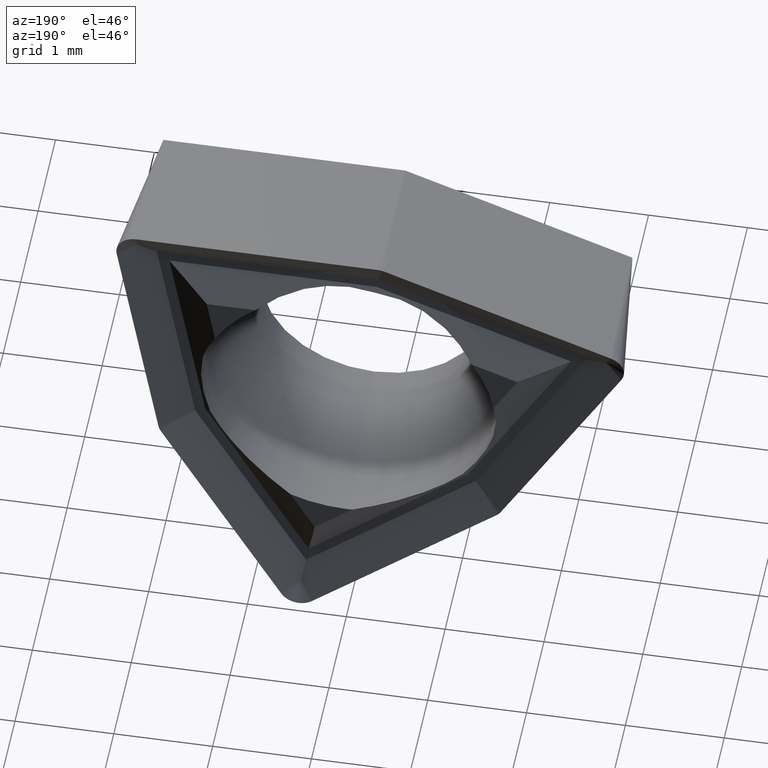
[diagram: clean part render]
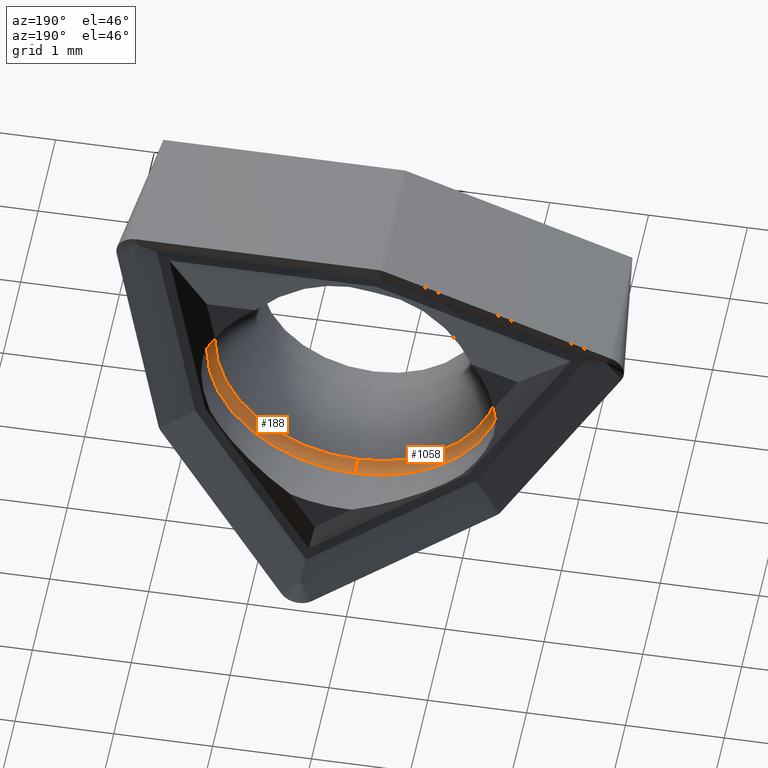
[diagram: same view with one multi-face feature highlighted, each face labeled with its STEP entity id]
A machine part, auxiliary view. The highlighted faces form ONE feature: a constant-radius fillet chain: 2 tangent blend faces with common blend radius 0.2 mm. The faces share edges in the B-rep.
Their STEP definitions:
[1] entity #1058 (Torus):
#22 = ORIENTED_EDGE ( 'NONE', *, *, #261, .F. ) ;
#32 = VERTEX_POINT ( 'NONE', #481 ) ;
#33 = AXIS2_PLACEMENT_3D ( 'NONE', #387, #780, #372 ) ;
#108 = DIRECTION ( 'NONE',  ( -0.000000000000000000, 1.000000000000000000, -0.000000000000000000 ) ) ;
#111 = EDGE_CURVE ( 'NONE', #1238, #32, #607, .T. ) ;
#118 = ORIENTED_EDGE ( 'NONE', *, *, #982, .F. ) ;
#148 = CARTESIAN_POINT ( 'NONE',  ( 1.800951175216695646E-16, -0.6416658185740271580, -1.441176470588235059 ) ) ;
#192 = DIRECTION ( 'NONE',  ( 0.000000000000000000, 0.000000000000000000, 1.000000000000000000 ) ) ;
#202 = EDGE_LOOP ( 'NONE', ( #118, #1036, #1231, #22 ) ) ;
#261 = EDGE_CURVE ( 'NONE', #603, #32, #862, .T. ) ;
#319 = DIRECTION ( 'NONE',  ( -1.000000000000000000, 0.000000000000000000, 0.000000000000000000 ) ) ;
#338 = VERTEX_POINT ( 'NONE', #148 ) ;
#347 = DIRECTION ( 'NONE',  ( 1.224646799147353207E-16, 0.000000000000000000, -1.000000000000000000 ) ) ;
#372 = DIRECTION ( 'NONE',  ( 0.000000000000000000, 0.000000000000000000, 1.000000000000000000 ) ) ;
#387 = CARTESIAN_POINT ( 'NONE',  ( 0.000000000000000000, -0.5000000000000001110, 0.000000000000000000 ) ) ;
#481 = CARTESIAN_POINT ( 'NONE',  ( 0.000000000000000000, -0.5000000000000000000, 1.499999999999999556 ) ) ;
#500 = AXIS2_PLACEMENT_3D ( 'NONE', #1173, #1252, #347 ) ;
#537 = CARTESIAN_POINT ( 'NONE',  ( 0.000000000000000000, -0.5000000000000001110, 1.299999999999999822 ) ) ;
#548 = AXIS2_PLACEMENT_3D ( 'NONE', #1291, #108, #192 ) ;
#580 = CIRCLE ( 'NONE', #938, 1.441176470588235059 ) ;
#598 = CARTESIAN_POINT ( 'NONE',  ( 1.836970198721029441E-16, -0.5000000000000000000, -1.499999999999999556 ) ) ;
#603 = VERTEX_POINT ( 'NONE', #685 ) ;
#607 = CIRCLE ( 'NONE', #548, 1.499999999999999556 ) ;
#684 = CIRCLE ( 'NONE', #500, 0.2000000000000000944 ) ;
#685 = CARTESIAN_POINT ( 'NONE',  ( 0.000000000000000000, -0.6416658185740271580, 1.441176470588235059 ) ) ;
#712 = DIRECTION ( 'NONE',  ( -0.000000000000000000, 1.000000000000000000, -0.000000000000000000 ) ) ;
#780 = DIRECTION ( 'NONE',  ( -0.000000000000000000, 1.000000000000000000, -0.000000000000000000 ) ) ;
#817 = CARTESIAN_POINT ( 'NONE',  ( 0.000000000000000000, -0.6416658185740271580, 0.000000000000000000 ) ) ;
#841 = AXIS2_PLACEMENT_3D ( 'NONE', #537, #319, #1236 ) ;
#862 = CIRCLE ( 'NONE', #841, 0.2000000000000000944 ) ;
#874 = EDGE_CURVE ( 'NONE', #338, #1238, #684, .T. ) ;
#888 = FACE_OUTER_BOUND ( 'NONE', #202, .T. ) ;
#938 = AXIS2_PLACEMENT_3D ( 'NONE', #817, #712, #1124 ) ;
#982 = EDGE_CURVE ( 'NONE', #338, #603, #580, .T. ) ;
#1036 = ORIENTED_EDGE ( 'NONE', *, *, #874, .T. ) ;
#1058 = ADVANCED_FACE ( 'NONE', ( #888 ), #1288, .F. ) ;
#1124 = DIRECTION ( 'NONE',  ( 0.000000000000000000, 0.000000000000000000, 1.000000000000000000 ) ) ;
#1173 = CARTESIAN_POINT ( 'NONE',  ( 1.592040838891558849E-16, -0.5000000000000001110, -1.299999999999999822 ) ) ;
#1231 = ORIENTED_EDGE ( 'NONE', *, *, #111, .T. ) ;
#1236 = DIRECTION ( 'NONE',  ( 0.000000000000000000, 0.000000000000000000, 1.000000000000000000 ) ) ;
#1238 = VERTEX_POINT ( 'NONE', #598 ) ;
#1252 = DIRECTION ( 'NONE',  ( 1.000000000000000000, 0.000000000000000000, 1.224646799147353207E-16 ) ) ;
#1288 = TOROIDAL_SURFACE ( 'NONE', #33, 1.299999999999999822, 0.2000000000000000666 ) ;
#1291 = CARTESIAN_POINT ( 'NONE',  ( 0.000000000000000000, -0.5000000000000000000, 0.000000000000000000 ) ) ;
[2] entity #188 (Torus):
#32 = VERTEX_POINT ( 'NONE', #481 ) ;
#38 = CIRCLE ( 'NONE', #395, 1.441176470588235059 ) ;
#115 = CARTESIAN_POINT ( 'NONE',  ( 0.000000000000000000, -0.6416658185740271580, 0.000000000000000000 ) ) ;
#136 = EDGE_CURVE ( 'NONE', #603, #338, #38, .T. ) ;
#148 = CARTESIAN_POINT ( 'NONE',  ( 1.800951175216695646E-16, -0.6416658185740271580, -1.441176470588235059 ) ) ;
#183 = DIRECTION ( 'NONE',  ( -0.000000000000000000, 1.000000000000000000, -0.000000000000000000 ) ) ;
#188 = ADVANCED_FACE ( 'NONE', ( #312 ), #1277, .F. ) ;
#197 = DIRECTION ( 'NONE',  ( 0.000000000000000000, 0.000000000000000000, 1.000000000000000000 ) ) ;
#236 = EDGE_LOOP ( 'NONE', ( #659, #815, #727, #854 ) ) ;
#261 = EDGE_CURVE ( 'NONE', #603, #32, #862, .T. ) ;
#312 = FACE_OUTER_BOUND ( 'NONE', #236, .T. ) ;
#319 = DIRECTION ( 'NONE',  ( -1.000000000000000000, 0.000000000000000000, 0.000000000000000000 ) ) ;
#338 = VERTEX_POINT ( 'NONE', #148 ) ;
#347 = DIRECTION ( 'NONE',  ( 1.224646799147353207E-16, 0.000000000000000000, -1.000000000000000000 ) ) ;
#395 = AXIS2_PLACEMENT_3D ( 'NONE', #115, #709, #989 ) ;
#412 = AXIS2_PLACEMENT_3D ( 'NONE', #1101, #183, #197 ) ;
#481 = CARTESIAN_POINT ( 'NONE',  ( 0.000000000000000000, -0.5000000000000000000, 1.499999999999999556 ) ) ;
#500 = AXIS2_PLACEMENT_3D ( 'NONE', #1173, #1252, #347 ) ;
#537 = CARTESIAN_POINT ( 'NONE',  ( 0.000000000000000000, -0.5000000000000001110, 1.299999999999999822 ) ) ;
#598 = CARTESIAN_POINT ( 'NONE',  ( 1.836970198721029441E-16, -0.5000000000000000000, -1.499999999999999556 ) ) ;
#603 = VERTEX_POINT ( 'NONE', #685 ) ;
#659 = ORIENTED_EDGE ( 'NONE', *, *, #874, .F. ) ;
#684 = CIRCLE ( 'NONE', #500, 0.2000000000000000944 ) ;
#685 = CARTESIAN_POINT ( 'NONE',  ( 0.000000000000000000, -0.6416658185740271580, 1.441176470588235059 ) ) ;
#709 = DIRECTION ( 'NONE',  ( -0.000000000000000000, 1.000000000000000000, -0.000000000000000000 ) ) ;
#717 = AXIS2_PLACEMENT_3D ( 'NONE', #896, #799, #1115 ) ;
#727 = ORIENTED_EDGE ( 'NONE', *, *, #261, .T. ) ;
#799 = DIRECTION ( 'NONE',  ( -0.000000000000000000, 1.000000000000000000, -0.000000000000000000 ) ) ;
#815 = ORIENTED_EDGE ( 'NONE', *, *, #136, .F. ) ;
#841 = AXIS2_PLACEMENT_3D ( 'NONE', #537, #319, #1236 ) ;
#854 = ORIENTED_EDGE ( 'NONE', *, *, #1025, .T. ) ;
#862 = CIRCLE ( 'NONE', #841, 0.2000000000000000944 ) ;
#874 = EDGE_CURVE ( 'NONE', #338, #1238, #684, .T. ) ;
#896 = CARTESIAN_POINT ( 'NONE',  ( 0.000000000000000000, -0.5000000000000001110, 0.000000000000000000 ) ) ;
#989 = DIRECTION ( 'NONE',  ( 0.000000000000000000, 0.000000000000000000, 1.000000000000000000 ) ) ;
#1025 = EDGE_CURVE ( 'NONE', #32, #1238, #1269, .T. ) ;
#1101 = CARTESIAN_POINT ( 'NONE',  ( 0.000000000000000000, -0.5000000000000000000, 0.000000000000000000 ) ) ;
#1115 = DIRECTION ( 'NONE',  ( 0.000000000000000000, 0.000000000000000000, 1.000000000000000000 ) ) ;
#1173 = CARTESIAN_POINT ( 'NONE',  ( 1.592040838891558849E-16, -0.5000000000000001110, -1.299999999999999822 ) ) ;
#1236 = DIRECTION ( 'NONE',  ( 0.000000000000000000, 0.000000000000000000, 1.000000000000000000 ) ) ;
#1238 = VERTEX_POINT ( 'NONE', #598 ) ;
#1252 = DIRECTION ( 'NONE',  ( 1.000000000000000000, 0.000000000000000000, 1.224646799147353207E-16 ) ) ;
#1269 = CIRCLE ( 'NONE', #412, 1.499999999999999556 ) ;
#1277 = TOROIDAL_SURFACE ( 'NONE', #717, 1.299999999999999822, 0.2000000000000000666 ) ;